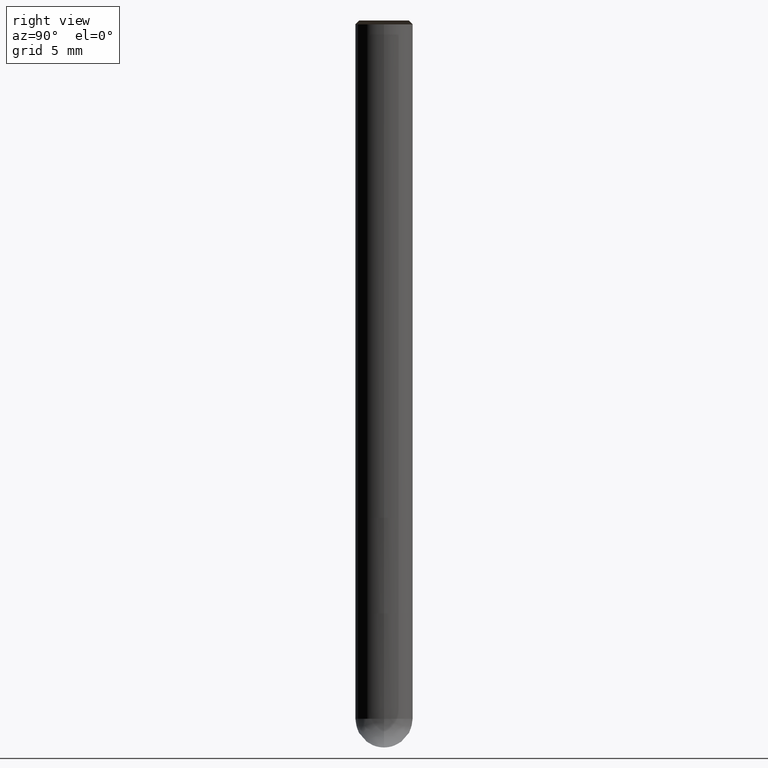
[diagram: clean part render]
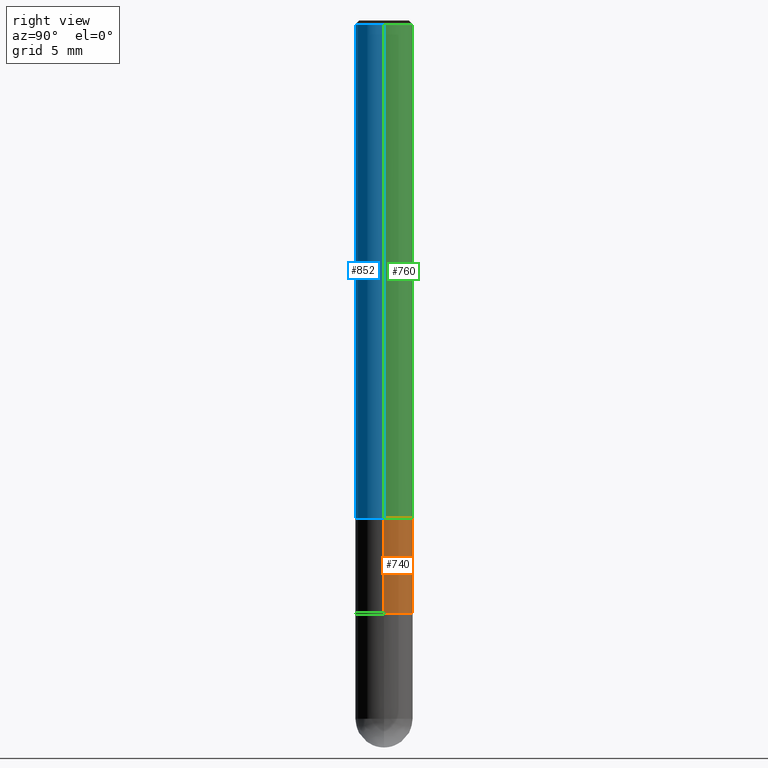
[diagram: same view with three faces highlighted in distinct colors, each labeled with its STEP entity id]
A machine part, right view with three faces highlighted in distinct colors.
Their STEP definitions:

[orange] entity #740 — the highlighted face is a freeform B-spline surface patch.
#551=CARTESIAN_POINT('',(1.5,0.0,-5.0));
#552=CARTESIAN_POINT('',(1.5,1.5,-5.0));
#553=CARTESIAN_POINT('',(0.0,1.5,-5.0));
#554=CARTESIAN_POINT('',(-1.5,1.5,-5.0));
#555=CARTESIAN_POINT('',(-1.5,0.0,-5.0));
#566=CARTESIAN_POINT('',(1.5,0.0,0.0));
#567=CARTESIAN_POINT('',(1.5,1.5,0.0));
#568=CARTESIAN_POINT('',(0.0,1.5,0.0));
#569=CARTESIAN_POINT('',(-1.5,1.5,0.0));
#570=CARTESIAN_POINT('',(-1.5,0.0,0.0));
#721=(
BOUNDED_SURFACE()
B_SPLINE_SURFACE(1,2,(
(#551,#552,#553,#554,#555),
(#566,#567,#568,#569,#570)
), .UNSPECIFIED.,.F.,.F.,.F.)
B_SPLINE_SURFACE_WITH_KNOTS((2,2),(3,2,3),(
0.0,1.0),(
0.0,0.5,1.0), .UNSPECIFIED.)
GEOMETRIC_REPRESENTATION_ITEM()
RATIONAL_B_SPLINE_SURFACE(((1.0,0.707106781187,1.0,0.707106781187,1.0),
(1.0,0.707106781187,1.0,0.707106781187,1.0)
))
REPRESENTATION_ITEM('')
SURFACE()
);
#722=(
BOUNDED_CURVE()
B_SPLINE_CURVE(2,(#555,#554,#553,#552,#551),.UNSPECIFIED.,.F.,.F.)
B_SPLINE_CURVE_WITH_KNOTS((3,2,3),
(0.0,0.5,1.0),.UNSPECIFIED.)
CURVE()
GEOMETRIC_REPRESENTATION_ITEM()
RATIONAL_B_SPLINE_CURVE((1.0,0.707106781187,1.0,0.707106781187,1.0))
REPRESENTATION_ITEM('')
);
#723=(
BOUNDED_CURVE()
B_SPLINE_CURVE(1,(#551,#566),.UNSPECIFIED.,.F.,.F.)
B_SPLINE_CURVE_WITH_KNOTS((2,2),
(0.0,1.0),.UNSPECIFIED.)
CURVE()
GEOMETRIC_REPRESENTATION_ITEM()
RATIONAL_B_SPLINE_CURVE((1.0,1.0))
REPRESENTATION_ITEM('')
);
#724=(
BOUNDED_CURVE()
B_SPLINE_CURVE(2,(#566,#567,#568,#569,#570),.UNSPECIFIED.,.F.,.F.)
B_SPLINE_CURVE_WITH_KNOTS((3,2,3),
(0.0,0.5,1.0),.UNSPECIFIED.)
CURVE()
GEOMETRIC_REPRESENTATION_ITEM()
RATIONAL_B_SPLINE_CURVE((1.0,0.707106781187,1.0,0.707106781187,1.0))
REPRESENTATION_ITEM('')
);
#725=(
BOUNDED_CURVE()
B_SPLINE_CURVE(1,(#570,#555),.UNSPECIFIED.,.F.,.F.)
B_SPLINE_CURVE_WITH_KNOTS((2,2),
(0.0,1.0),.UNSPECIFIED.)
CURVE()
GEOMETRIC_REPRESENTATION_ITEM()
RATIONAL_B_SPLINE_CURVE((1.0,1.0))
REPRESENTATION_ITEM('')
);
#726=VERTEX_POINT('',#551);
#727=VERTEX_POINT('',#555);
#728=VERTEX_POINT('',#566);
#729=VERTEX_POINT('',#570);
#730=EDGE_CURVE('',#727,#726,#722,.T.);
#731=EDGE_CURVE('',#726,#728,#723,.T.);
#732=EDGE_CURVE('',#728,#729,#724,.T.);
#733=EDGE_CURVE('',#729,#727,#725,.T.);
#734=ORIENTED_EDGE('',*,*,#730,.T.);
#735=ORIENTED_EDGE('',*,*,#731,.T.);
#736=ORIENTED_EDGE('',*,*,#732,.T.);
#737=ORIENTED_EDGE('',*,*,#733,.T.);
#738=EDGE_LOOP('',(#734,#735,#736,#737));
#739=FACE_OUTER_BOUND('',#738,.T.);
#740=ADVANCED_FACE('',(#739),#721,.T.);

[blue] entity #852 — the highlighted face is a freeform B-spline surface patch.
#566=CARTESIAN_POINT('',(1.5,0.0,0.0));
#570=CARTESIAN_POINT('',(-1.5,0.0,0.0));
#571=CARTESIAN_POINT('',(1.5,0.0,25.8));
#575=CARTESIAN_POINT('',(-1.5,0.0,25.8));
#582=CARTESIAN_POINT('',(-1.5,-1.5,0.0));
#583=CARTESIAN_POINT('',(0.0,-1.5,0.0));
#584=CARTESIAN_POINT('',(1.5,-1.5,0.0));
#585=CARTESIAN_POINT('',(-1.5,-1.5,25.8));
#586=CARTESIAN_POINT('',(0.0,-1.5,25.8));
#587=CARTESIAN_POINT('',(1.5,-1.5,25.8));
#833=(
BOUNDED_SURFACE()
B_SPLINE_SURFACE(1,2,(
(#570,#582,#583,#584,#566),
(#575,#585,#586,#587,#571)
), .UNSPECIFIED.,.F.,.F.,.F.)
B_SPLINE_SURFACE_WITH_KNOTS((2,2),(3,2,3),(
0.0,1.0),(
0.0,0.5,1.0), .UNSPECIFIED.)
GEOMETRIC_REPRESENTATION_ITEM()
RATIONAL_B_SPLINE_SURFACE(((1.0,0.707106781187,1.0,0.707106781187,1.0),
(1.0,0.707106781187,1.0,0.707106781187,1.0)
))
REPRESENTATION_ITEM('')
SURFACE()
);
#834=(
BOUNDED_CURVE()
B_SPLINE_CURVE(2,(#566,#584,#583,#582,#570),.UNSPECIFIED.,.F.,.F.)
B_SPLINE_CURVE_WITH_KNOTS((3,2,3),
(0.0,0.5,1.0),.UNSPECIFIED.)
CURVE()
GEOMETRIC_REPRESENTATION_ITEM()
RATIONAL_B_SPLINE_CURVE((1.0,0.707106781187,1.0,0.707106781187,1.0))
REPRESENTATION_ITEM('')
);
#835=(
BOUNDED_CURVE()
B_SPLINE_CURVE(1,(#570,#575),.UNSPECIFIED.,.F.,.F.)
B_SPLINE_CURVE_WITH_KNOTS((2,2),
(0.0,1.0),.UNSPECIFIED.)
CURVE()
GEOMETRIC_REPRESENTATION_ITEM()
RATIONAL_B_SPLINE_CURVE((1.0,1.0))
REPRESENTATION_ITEM('')
);
#836=(
BOUNDED_CURVE()
B_SPLINE_CURVE(2,(#575,#585,#586,#587,#571),.UNSPECIFIED.,.F.,.F.)
B_SPLINE_CURVE_WITH_KNOTS((3,2,3),
(0.0,0.5,1.0),.UNSPECIFIED.)
CURVE()
GEOMETRIC_REPRESENTATION_ITEM()
RATIONAL_B_SPLINE_CURVE((1.0,0.707106781187,1.0,0.707106781187,1.0))
REPRESENTATION_ITEM('')
);
#837=(
BOUNDED_CURVE()
B_SPLINE_CURVE(1,(#571,#566),.UNSPECIFIED.,.F.,.F.)
B_SPLINE_CURVE_WITH_KNOTS((2,2),
(0.0,1.0),.UNSPECIFIED.)
CURVE()
GEOMETRIC_REPRESENTATION_ITEM()
RATIONAL_B_SPLINE_CURVE((1.0,1.0))
REPRESENTATION_ITEM('')
);
#838=VERTEX_POINT('',#566);
#839=VERTEX_POINT('',#570);
#840=VERTEX_POINT('',#571);
#841=VERTEX_POINT('',#575);
#842=EDGE_CURVE('',#838,#839,#834,.T.);
#843=EDGE_CURVE('',#839,#841,#835,.T.);
#844=EDGE_CURVE('',#841,#840,#836,.T.);
#845=EDGE_CURVE('',#840,#838,#837,.T.);
#846=ORIENTED_EDGE('',*,*,#842,.T.);
#847=ORIENTED_EDGE('',*,*,#843,.T.);
#848=ORIENTED_EDGE('',*,*,#844,.T.);
#849=ORIENTED_EDGE('',*,*,#845,.T.);
#850=EDGE_LOOP('',(#846,#847,#848,#849));
#851=FACE_OUTER_BOUND('',#850,.T.);
#852=ADVANCED_FACE('',(#851),#833,.T.);

[green] entity #760 — the highlighted face is a freeform B-spline surface patch.
#566=CARTESIAN_POINT('',(1.5,0.0,0.0));
#567=CARTESIAN_POINT('',(1.5,1.5,0.0));
#568=CARTESIAN_POINT('',(0.0,1.5,0.0));
#569=CARTESIAN_POINT('',(-1.5,1.5,0.0));
#570=CARTESIAN_POINT('',(-1.5,0.0,0.0));
#571=CARTESIAN_POINT('',(1.5,0.0,25.8));
#572=CARTESIAN_POINT('',(1.5,1.5,25.8));
#573=CARTESIAN_POINT('',(0.0,1.5,25.8));
#574=CARTESIAN_POINT('',(-1.5,1.5,25.8));
#575=CARTESIAN_POINT('',(-1.5,0.0,25.8));
#741=(
BOUNDED_SURFACE()
B_SPLINE_SURFACE(1,2,(
(#566,#567,#568,#569,#570),
(#571,#572,#573,#574,#575)
), .UNSPECIFIED.,.F.,.F.,.F.)
B_SPLINE_SURFACE_WITH_KNOTS((2,2),(3,2,3),(
0.0,1.0),(
0.0,0.5,1.0), .UNSPECIFIED.)
GEOMETRIC_REPRESENTATION_ITEM()
RATIONAL_B_SPLINE_SURFACE(((1.0,0.707106781187,1.0,0.707106781187,1.0),
(1.0,0.707106781187,1.0,0.707106781187,1.0)
))
REPRESENTATION_ITEM('')
SURFACE()
);
#742=(
BOUNDED_CURVE()
B_SPLINE_CURVE(2,(#570,#569,#568,#567,#566),.UNSPECIFIED.,.F.,.F.)
B_SPLINE_CURVE_WITH_KNOTS((3,2,3),
(0.0,0.5,1.0),.UNSPECIFIED.)
CURVE()
GEOMETRIC_REPRESENTATION_ITEM()
RATIONAL_B_SPLINE_CURVE((1.0,0.707106781187,1.0,0.707106781187,1.0))
REPRESENTATION_ITEM('')
);
#743=(
BOUNDED_CURVE()
B_SPLINE_CURVE(1,(#566,#571),.UNSPECIFIED.,.F.,.F.)
B_SPLINE_CURVE_WITH_KNOTS((2,2),
(0.0,1.0),.UNSPECIFIED.)
CURVE()
GEOMETRIC_REPRESENTATION_ITEM()
RATIONAL_B_SPLINE_CURVE((1.0,1.0))
REPRESENTATION_ITEM('')
);
#744=(
BOUNDED_CURVE()
B_SPLINE_CURVE(2,(#571,#572,#573,#574,#575),.UNSPECIFIED.,.F.,.F.)
B_SPLINE_CURVE_WITH_KNOTS((3,2,3),
(0.0,0.5,1.0),.UNSPECIFIED.)
CURVE()
GEOMETRIC_REPRESENTATION_ITEM()
RATIONAL_B_SPLINE_CURVE((1.0,0.707106781187,1.0,0.707106781187,1.0))
REPRESENTATION_ITEM('')
);
#745=(
BOUNDED_CURVE()
B_SPLINE_CURVE(1,(#575,#570),.UNSPECIFIED.,.F.,.F.)
B_SPLINE_CURVE_WITH_KNOTS((2,2),
(0.0,1.0),.UNSPECIFIED.)
CURVE()
GEOMETRIC_REPRESENTATION_ITEM()
RATIONAL_B_SPLINE_CURVE((1.0,1.0))
REPRESENTATION_ITEM('')
);
#746=VERTEX_POINT('',#566);
#747=VERTEX_POINT('',#570);
#748=VERTEX_POINT('',#571);
#749=VERTEX_POINT('',#575);
#750=EDGE_CURVE('',#747,#746,#742,.T.);
#751=EDGE_CURVE('',#746,#748,#743,.T.);
#752=EDGE_CURVE('',#748,#749,#744,.T.);
#753=EDGE_CURVE('',#749,#747,#745,.T.);
#754=ORIENTED_EDGE('',*,*,#750,.T.);
#755=ORIENTED_EDGE('',*,*,#751,.T.);
#756=ORIENTED_EDGE('',*,*,#752,.T.);
#757=ORIENTED_EDGE('',*,*,#753,.T.);
#758=EDGE_LOOP('',(#754,#755,#756,#757));
#759=FACE_OUTER_BOUND('',#758,.T.);
#760=ADVANCED_FACE('',(#759),#741,.T.);